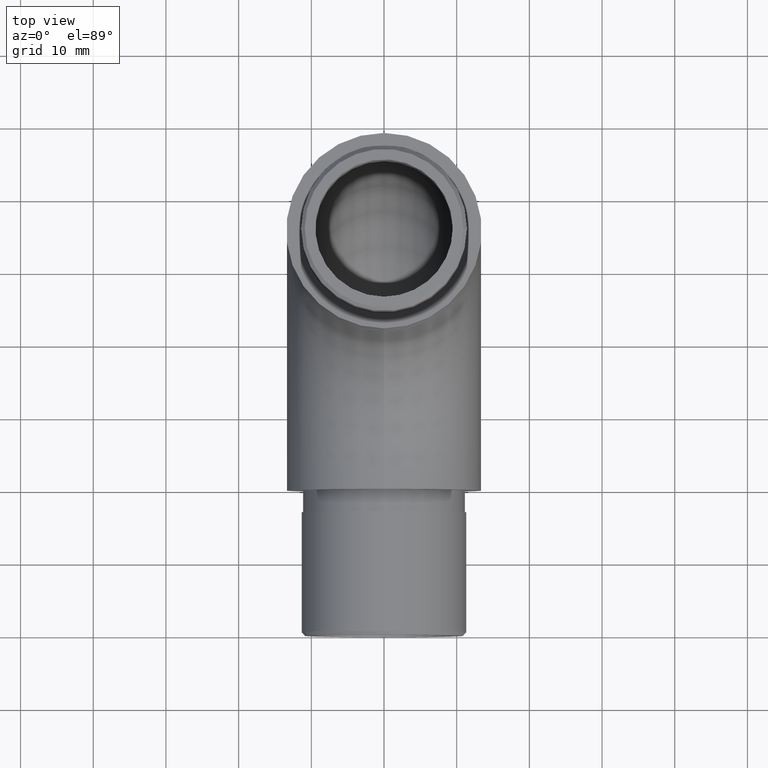
[diagram: clean part render]
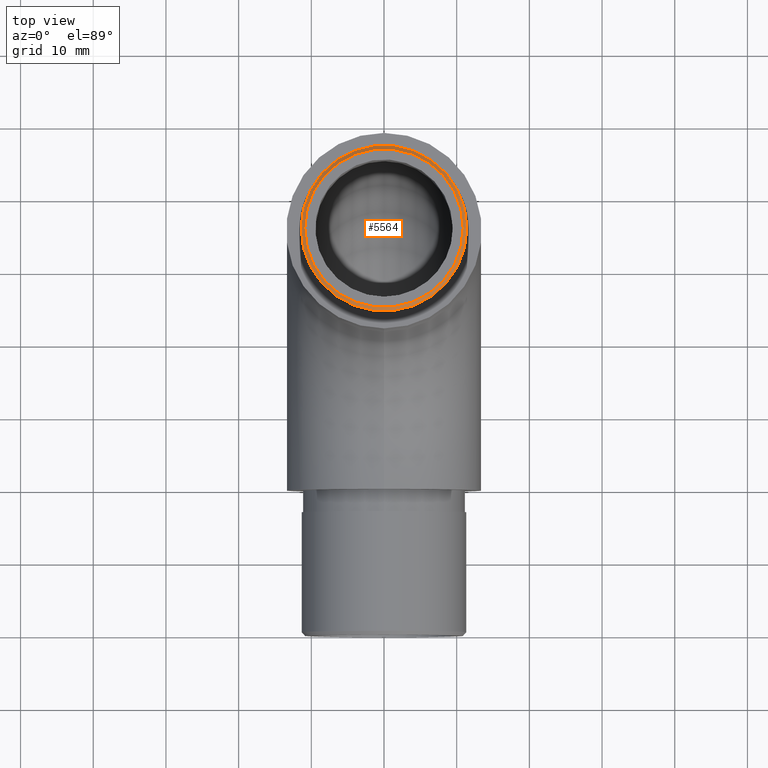
[diagram: same view with one face highlighted and labeled with its STEP entity id]
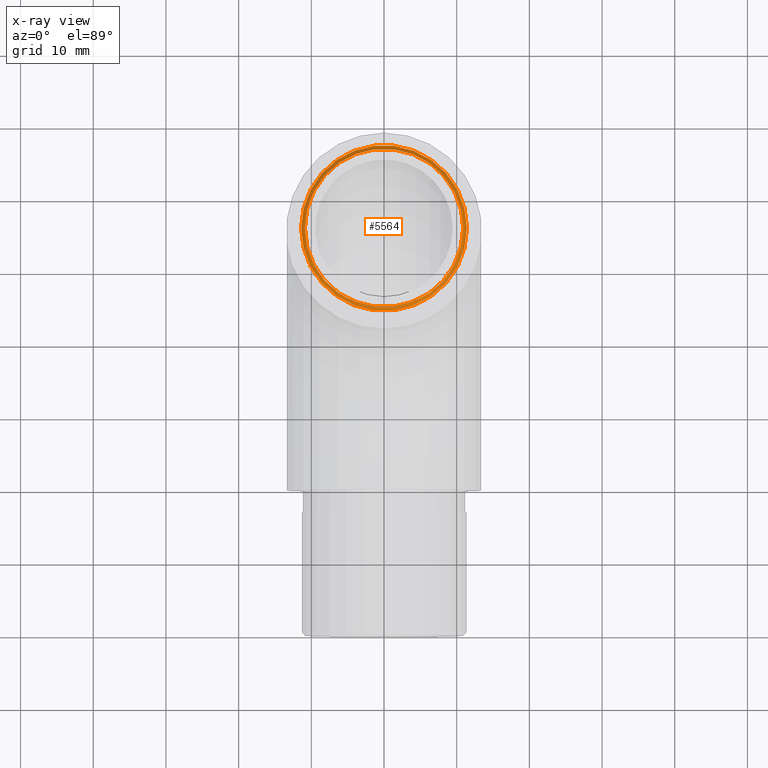
[diagram: x-ray of the same camera — body ghosted, the highlighted face saturated]
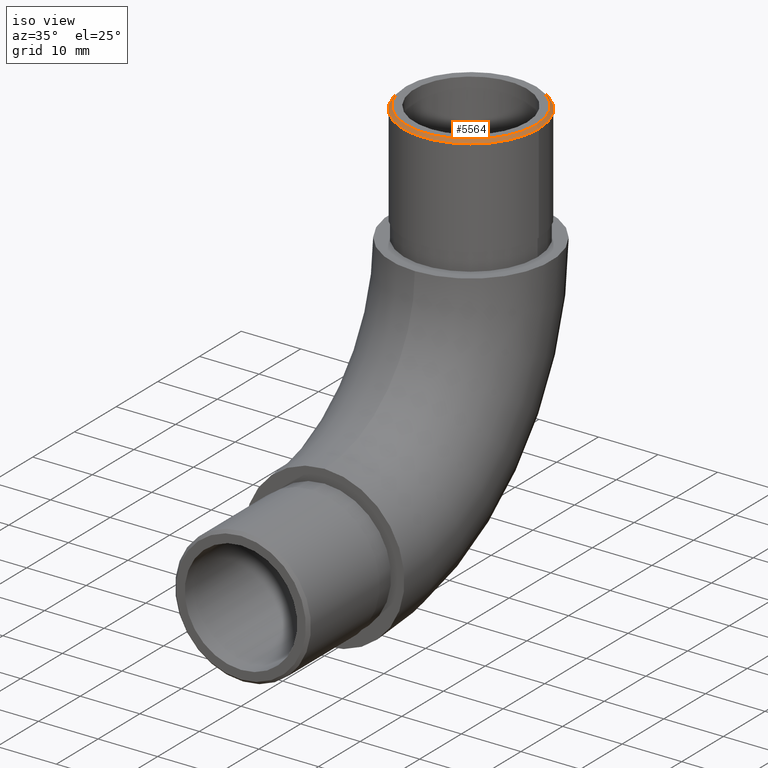
[diagram: same view with one face highlighted and labeled with its STEP entity id]
A machine part, top view. The second image highlights one B-rep face of the part: STEP entity #5564.
The next image is the same camera in x-ray: the body ghosted, the highlighted face saturated — about 0% of this face is hidden behind the body in this view.
A second angle (iso view) of the same face is appended — the face is thin or edge-on in the first view.
In plain terms, the highlighted conical surface has half-angle 45 deg.
Its self-contained STEP definition (entity closure, byte-faithful):
#316 = EDGE_LOOP ( 'NONE', ( #6302 ) ) ;
#361 = EDGE_LOOP ( 'NONE', ( #502 ) ) ;
#502 = ORIENTED_EDGE ( 'NONE', *, *, #11451, .F. ) ;
#609 = VERTEX_POINT ( 'NONE', #5363 ) ;
#892 = CARTESIAN_POINT ( 'NONE',  ( 0.0000000000000000000, 35.14999999999999900, 68.60000000000000900 ) ) ;
#975 = DIRECTION ( 'NONE',  ( 1.000000000000000000, 0.0000000000000000000, 0.0000000000000000000 ) ) ;
#1096 = CONICAL_SURFACE ( 'NONE', #9824, 10.89999999999999100, 0.7853981633974569400 ) ;
#1592 = DIRECTION ( 'NONE',  ( 1.000000000000000000, 0.0000000000000000000, 0.0000000000000000000 ) ) ;
#1743 = CIRCLE ( 'NONE', #11660, 11.40000000000000000 ) ;
#2261 = CARTESIAN_POINT ( 'NONE',  ( 0.0000000000000000000, 35.14999999999999900, 68.60000000000000900 ) ) ;
#2288 = CIRCLE ( 'NONE', #2509, 10.89999999999999100 ) ;
#2509 = AXIS2_PLACEMENT_3D ( 'NONE', #892, #11711, #975 ) ;
#3156 = DIRECTION ( 'NONE',  ( 0.0000000000000000000, 0.0000000000000000000, -1.000000000000000000 ) ) ;
#3441 = EDGE_CURVE ( 'NONE', #6685, #6685, #2288, .T. ) ;
#4939 = FACE_BOUND ( 'NONE', #316, .T. ) ;
#5363 = CARTESIAN_POINT ( 'NONE',  ( 11.40000000000000000, 35.14999999999999900, 68.10000000000000900 ) ) ;
#5564 = ADVANCED_FACE ( 'NONE', ( #10688, #4939 ), #1096, .T. ) ;
#6302 = ORIENTED_EDGE ( 'NONE', *, *, #3441, .F. ) ;
#6685 = VERTEX_POINT ( 'NONE', #11700 ) ;
#6982 = DIRECTION ( 'NONE',  ( 0.0000000000000000000, 0.0000000000000000000, -1.000000000000000000 ) ) ;
#7142 = CARTESIAN_POINT ( 'NONE',  ( 0.0000000000000000000, 35.14999999999999900, 68.10000000000000900 ) ) ;
#9448 = DIRECTION ( 'NONE',  ( -1.000000000000000000, 0.0000000000000000000, 0.0000000000000000000 ) ) ;
#9824 = AXIS2_PLACEMENT_3D ( 'NONE', #2261, #3156, #9448 ) ;
#10688 = FACE_OUTER_BOUND ( 'NONE', #361, .T. ) ;
#11451 = EDGE_CURVE ( 'NONE', #609, #609, #1743, .T. ) ;
#11660 = AXIS2_PLACEMENT_3D ( 'NONE', #7142, #6982, #1592 ) ;
#11700 = CARTESIAN_POINT ( 'NONE',  ( 10.89999999999999100, 35.14999999999999900, 68.60000000000000900 ) ) ;
#11711 = DIRECTION ( 'NONE',  ( 0.0000000000000000000, 0.0000000000000000000, 1.000000000000000000 ) ) ;